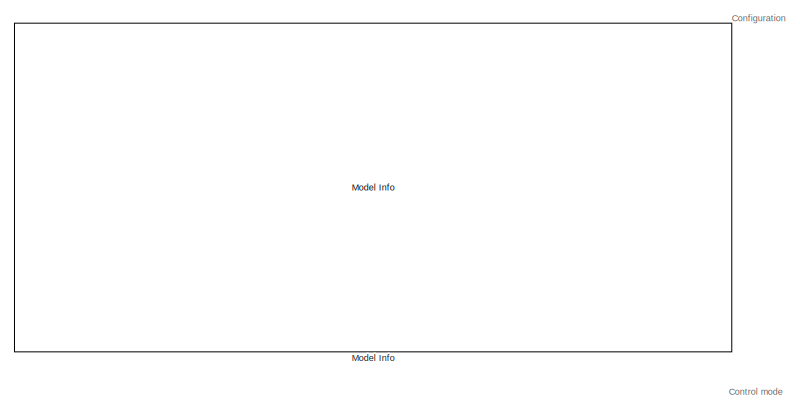
[diagram: root canvas - part 1/3, top left region]
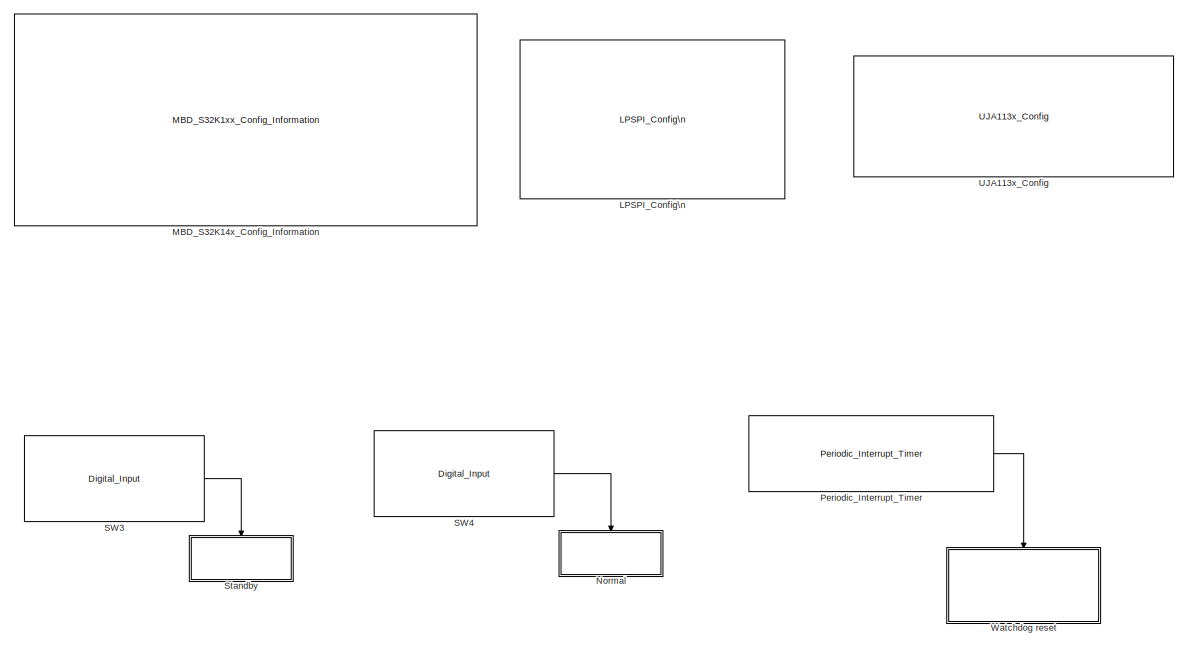
[diagram: root canvas - part 2/3, middle right region]
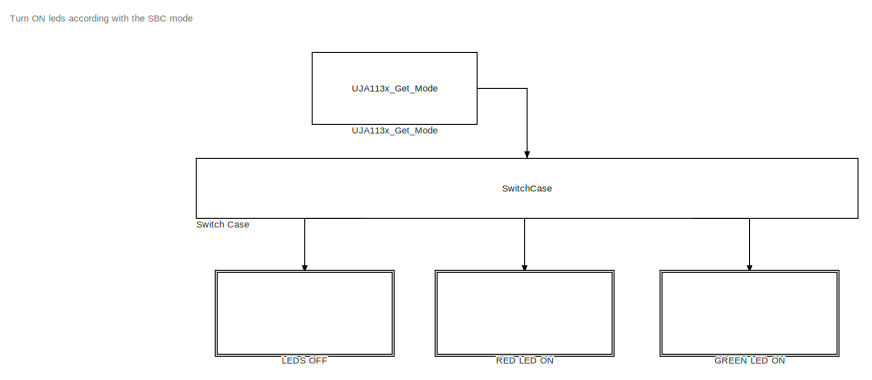
[diagram: root canvas - part 3/3, bottom center region]
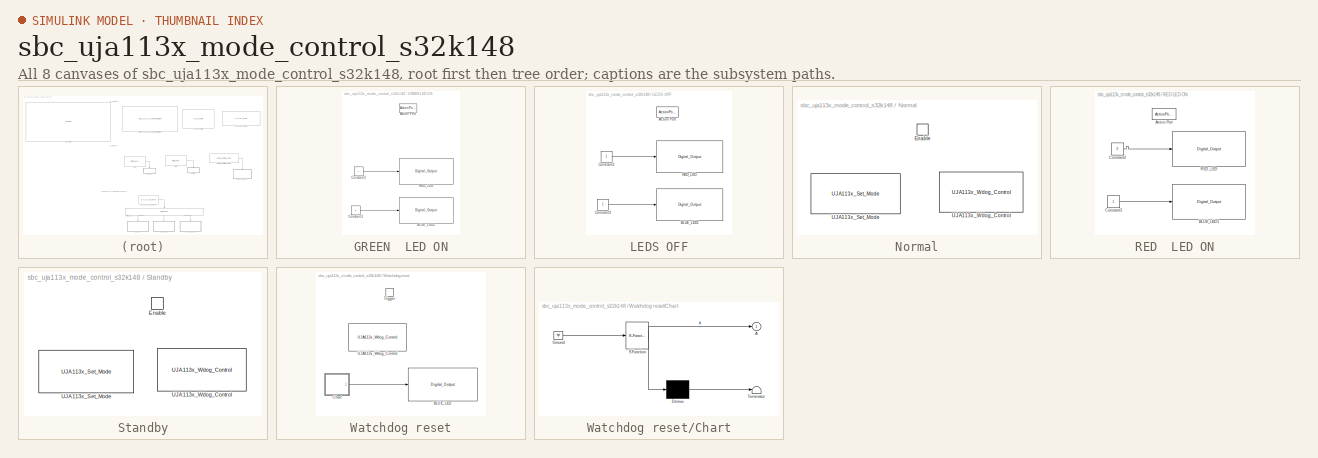
[diagram: thumbnail index - all 8 canvases of the model, root first then tree order]
MODEL sbc_uja113x_mode_control_s32k148
KIND model
CONFIG InitFcn = mbd_s32k_consistency_checks(bdroot(gcs));
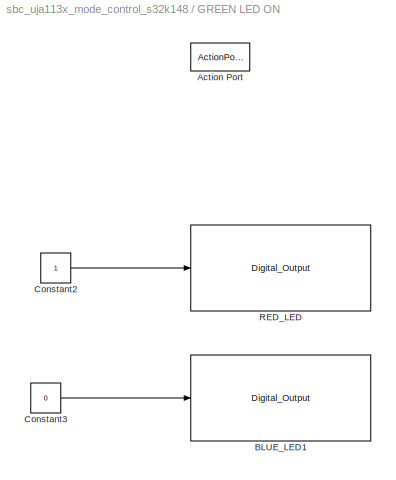
BLOCK [SubSystem] GREEN  LED ON
  Ports = [0, 0, 0, 0, 0, 0, 0, 1]
  RequestExecContextInheritance = off
  SID = 203
  TreatAsAtomicUnit = on
  Variant = off
BLOCK [ActionPort] GREEN  LED ON/Action Port
  ActionType = case
  SID = 204
BLOCK [Reference] GREEN  LED ON/BLUE_LED1  REF=mbd_s32k1xx_ec_toolbox/GPIO Blocks/Digital_Output
  Ports = [1]
  Priority = 2
  SID = 377
  SourceBlock = mbd_s32k1xx_ec_toolbox/GPIO Blocks/Digital_Output
  SourceType = gpio_s32k_output
  drive_strength = Low
  gpio_pin = PTE22: [PTE22 | Port E I/O]
  init_val = Low
BLOCK [Constant] GREEN  LED ON/Constant2
  OutDataTypeStr = boolean
  SID = 378
BLOCK [Constant] GREEN  LED ON/Constant3
  OutDataTypeStr = boolean
  SID = 379
  Value = 0
BLOCK [Reference] GREEN  LED ON/RED_LED  REF=mbd_s32k1xx_ec_toolbox/GPIO Blocks/Digital_Output
  Ports = [1]
  Priority = 2
  SID = 380
  SourceBlock = mbd_s32k1xx_ec_toolbox/GPIO Blocks/Digital_Output
  SourceType = gpio_s32k_output
  drive_strength = Low
  gpio_pin = PTE21: [PTE21 | Port E I/O]
  init_val = Low
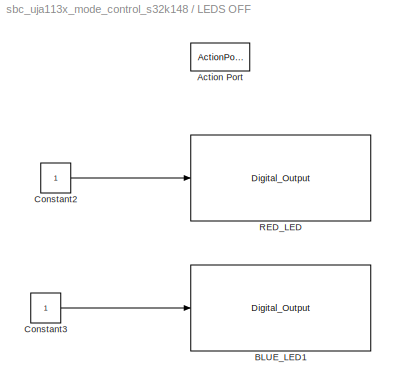
BLOCK [SubSystem] LEDS OFF
  Ports = [0, 0, 0, 0, 0, 0, 0, 1]
  RequestExecContextInheritance = off
  SID = 259
  TreatAsAtomicUnit = on
  Variant = off
BLOCK [ActionPort] LEDS OFF/Action Port
  ActionType = case
  SID = 260
BLOCK [Reference] LEDS OFF/BLUE_LED1  REF=mbd_s32k1xx_ec_toolbox/GPIO Blocks/Digital_Output
  Ports = [1]
  Priority = 2
  SID = 372
  SourceBlock = mbd_s32k1xx_ec_toolbox/GPIO Blocks/Digital_Output
  SourceType = gpio_s32k_output
  drive_strength = Low
  gpio_pin = PTE22: [PTE22 | Port E I/O]
  init_val = Low
BLOCK [Constant] LEDS OFF/Constant2
  OutDataTypeStr = boolean
  SID = 279
BLOCK [Constant] LEDS OFF/Constant3
  OutDataTypeStr = boolean
  SID = 280
BLOCK [Reference] LEDS OFF/RED_LED  REF=mbd_s32k1xx_ec_toolbox/GPIO Blocks/Digital_Output
  Ports = [1]
  Priority = 2
  SID = 371
  SourceBlock = mbd_s32k1xx_ec_toolbox/GPIO Blocks/Digital_Output
  SourceType = gpio_s32k_output
  drive_strength = Low
  gpio_pin = PTE21: [PTE21 | Port E I/O]
  init_val = Low
BLOCK [Reference] LPSPI_Config\n  REF=mbd_s32k1xx_ec_toolbox/Communication Blocks/SPI Blocks/LPSPI_Config\n
  BaudRate = 4000000
  BitOrder = MSB first
  CPHA = 1
  CPOL = 0
  ContinuousTransfer = on
  InstanceNumber = 1
  PCSPol = ActiveLow
  Ports = []
  Priority = 1
  Role = Master
  SID = 4
  ShowAdvanced = on
  SourceBlock = mbd_s32k1xx_ec_toolbox/Communication Blocks/SPI Blocks/LPSPI_Config\n
  SourceType = lpspi_s32k_config
  TransferSize = 8
  WhichPCS = 0
  pcs0 = PTA26: [LPSPI1_PCS0 | Peripheral Chip Select 0]
  pcs1 = None
  pcs2 = None
  pcs3 = None
  sck = PTA28: [LPSPI1_SCK | LPSPI Serial Clock I/O]
  sin = PTA29: [LPSPI1_SIN | LPSPI Serial Data Input]
  sout = PTA27: [LPSPI1_SOUT | LPSPI Serial Data Output]
BLOCK [Reference] MBD_S32K14x_Config_Information  REF=mbd_s32k1xx_ec_toolbox/MBD_S32K1xx_Config_Information
  ADC_PcrCheckEnDis = off
  AMMCLIB_PcrCheckEnDis = off
  CMP_PcrCheckEnDis = off
  CSEc_PcrCheckEnDis = off
  ConfigParams_PcrCheckEnDis = on
  FM_PcrCheckEnDis = off
  FTM_Dual_Edge_Inputs_PcrCheckEnDis = off
  FTM_Hall_Sensor_Inputs_PcrCheckEnDis = on
  FTM_Input_Edge_Inputs_PcrCheckEnDis = off
  FTM_PWM_PcrCheckEnDis = on
  FTM_Quadrature_Inputs_PcrCheckEnDis = off
  FlexCAN_PcrCheckEnDis = off
  FlexIO_PcrCheckEnDis = off
  GPIO_InputPcrCheckEnDis = on
  GPIO_OutputPcrCheckEnDis = on
  LIN_PcrCheckEnDis = on
  LPI2C_PcrCheckEnDis = off
  LPSPI_PcrCheckEnDis = on
  LPTMR_PcrCheckEnDis = off
  LPUART_PcrCheckEnDis = off
  ModelRef_PcrCheckEnDis = on
  PDB0_PcrCheckEnDis = off
  PIT_PcrCheckEnDis = off
  Ports = []
  Profile_PcrCheckEnDis = off
  RTC_PcrCheckEnDis = off
  SBC_PcrCheckEnDis = on
  SID = 1
  SourceBlock = mbd_s32k1xx_ec_toolbox/MBD_S32K1xx_Config_Information
  SourceType = MBDTBX_EC_S32K
  WDOG_PcrCheckEnDis = on
  config_params = []
  disp_str = Target : S32K144-64KB_SRAM\nPackage : 100-pin\nSystem clock : 80 MHz\nXTAL clock : External 8 MHz\nCompiler : IAR\nTarget Type : FLASH\nDownload Code after build : off\nStep Tick Interrupt Priority : 15
  ds_import_enable = on
  eDMA_PcrCheckEnDis = off
  gcc_target_assemble_opts = -mcpu=cortex-m4 -mthumb -mfloat-abi=hard -mfpu=fpv4-sp-d16 -g
  gcc_target_compile_opts = -mcpu=cortex-m4 -mthumb -mfloat-abi=hard -mfpu=fpv4-sp-d16 -O1 -g -gstrict-dwarf
  gcc_target_default_lcf = on
  gcc_target_link_opts = -mcpu=cortex-m4 -mthumb -mfloat-abi=hard -mfpu=fpv4-sp-d16
  gcc_target_user_lcf = S32K148_192_flash.ld
  ghs_target_assemble_opts = -cpu=cortexm4f -fpu=vfpv4_d16
  ghs_target_compile_opts = -cpu=cortexm4f -thumb -DARM_MATH_CM4 -fpu=vfpv4_d16 -fsingle -Ogeneral -Wundef -Wimplicit-int -Wshadow -Wtrigraphs --no_commons --gnu_asm -gnu99 -gdwarf-2 -G
  ghs_target_default_lcf = off
  ghs_target_link_opts = -cpu=cortexm4f -thumb -fpu=vfpv4_d16
  ghs_target_user_lcf = S32K148_192_flash.ld
  iar_target_assemble_opts = --cpu Cortex-M4F --thumb --fpu VFPv4_sp
  iar_target_compile_opts = --cpu=Cortex-M4F --thumb --fpu=VFPv4_sp -Ol -e --debug --dlib_config normal
  iar_target_default_lcf = off
  iar_target_link_opts = --no_exceptions --vfe --inline
  iar_target_user_lcf = S32K148_192_flash.icf
  mbdt_ver = 0
  mcu_steptick_prio = 15
  mcu_steptick_timer = LPIT Channel 0
  mcu_system_clock_freq = 80
  mcu_target_name = S32K148
  mcu_target_package = 144-LQFP
  mcu_target_sram_size = 192KB
  mcu_xtal_freq = External 8
  pil_download_enable = off
  pil_download_rate = 57600
  pil_opensda_drive = Custom
  pil_opensda_drive_custom = D
  pil_uart_instance = 0
  pil_uart_rx = PTA2: [LPUART0_RX | Receive]
  pil_uart_tx = PTA3: [LPUART0_TX | Transmit]
  rbl_com_port = Custom
  rbl_com_port_custom = COM1
  rbl_download_enable = on
  rbl_download_interface = OpenSDA
  rbl_restart_request = off
  rbl_start_delay = 5000000
  target_compiler = GCC
  target_memory = FLASH
BLOCK [Reference] Model Info  REF=simulink/Model-Wide\nUtilities/Model Info
  DisplayStringWithTags = Model Name: %<ModelName>\n\nDescription: %<Description>
  Frame = on
  HorizontalTextAlignment = Left
  LeftAlignmentValue = 0.02
  MaskDisplayString = Model Name: sbc_uja113x_mode_control_s32k148\\n\\nDescription: This model demonstrates how to handle operating modes of SBC.\\n\\nValidation:\\n- A BLUE led is toggled at each time Watchdog resets\\n- Press SW3 to send SBC in Standby mode (RED led should be on)\\n- Press SW4 to send SBC in Normal mode (GREEN led should be on)\\n\\nNote:\\nThis application flashes the non-volatile memory MTPNV and ...<+511ch>
  Ports = []
  SID = 384
  SourceBlock = simulink/Model-Wide\nUtilities/Model Info
  SourceProductBaseCode = SL
  SourceProductName = Simulink
  SourceType = CMBlock
BLOCK [SubSystem] Normal
  Ports = [0, 0, 1]
  RequestExecContextInheritance = off
  SID = 24
  TreatAsAtomicUnit = on
  Variant = off
BLOCK [EnablePort] Normal/Enable
  Ports = []
  SID = 25
BLOCK [Reference] Normal/UJA113x_Set_Mode  REF=mbd_sbc_ec_toolbox/UJA113x/UJA113x_Set_Mode
  Ports = []
  SID = 27
  SourceBlock = mbd_sbc_ec_toolbox/UJA113x/UJA113x_Set_Mode
  SourceType = sbc_uja113x_s32k_set_mode
  modeCtrl = Normal
  status = off
BLOCK [Reference] Normal/UJA113x_Wdog_Control  REF=mbd_sbc_ec_toolbox/UJA113x/UJA113x_Wdog_Control
  ModeCtrl = Window
  NominalPer = 128 ms
  Ports = []
  SID = 28
  SourceBlock = mbd_sbc_ec_toolbox/UJA113x/UJA113x_Wdog_Control
  SourceType = sbc_uja113x_s32k_wdog_control
  mode = on
  period = off
  reset = off
BLOCK [Reference] Periodic_Interrupt_Timer  REF=mbd_s32k1xx_ec_toolbox/Utility Blocks/Periodic_Interrupt_Timer
  Ports = [0, 1]
  SID = 14
  SourceBlock = mbd_s32k1xx_ec_toolbox/Utility Blocks/Periodic_Interrupt_Timer
  SourceType = timer_s32k_lpit
  channel = 1
  period = 3000000
  prio = 15
  startCounter = on
BLOCK [SubSystem] RED  LED ON
  Ports = [0, 0, 0, 0, 0, 0, 0, 1]
  RequestExecContextInheritance = off
  SID = 315
  TreatAsAtomicUnit = on
  Variant = off
BLOCK [ActionPort] RED  LED ON/Action Port
  ActionType = case
  SID = 316
BLOCK [Reference] RED  LED ON/BLUE_LED1  REF=mbd_s32k1xx_ec_toolbox/GPIO Blocks/Digital_Output
  Ports = [1]
  Priority = 2
  SID = 373
  SourceBlock = mbd_s32k1xx_ec_toolbox/GPIO Blocks/Digital_Output
  SourceType = gpio_s32k_output
  drive_strength = Low
  gpio_pin = PTE22: [PTE22 | Port E I/O]
  init_val = Low
BLOCK [Constant] RED  LED ON/Constant2
  OutDataTypeStr = boolean
  SID = 374
  Value = 0
BLOCK [Constant] RED  LED ON/Constant3
  OutDataTypeStr = boolean
  SID = 375
BLOCK [Reference] RED  LED ON/RED_LED  REF=mbd_s32k1xx_ec_toolbox/GPIO Blocks/Digital_Output
  Ports = [1]
  Priority = 2
  SID = 376
  SourceBlock = mbd_s32k1xx_ec_toolbox/GPIO Blocks/Digital_Output
  SourceType = gpio_s32k_output
  drive_strength = Low
  gpio_pin = PTE21: [PTE21 | Port E I/O]
  init_val = Low
BLOCK [Reference] SW3  REF=mbd_s32k1xx_ec_toolbox/GPIO Blocks/Digital_Input
  Ports = [0, 1]
  SID = 22
  SourceBlock = mbd_s32k1xx_ec_toolbox/GPIO Blocks/Digital_Input
  SourceType = gpio_s32k_input
  gpio_pin = PTC12: [PTC12 | Port C I/O]
  passive_filter = off
  pull_resistor = Pulldown
BLOCK [Reference] SW4  REF=mbd_s32k1xx_ec_toolbox/GPIO Blocks/Digital_Input
  Ports = [0, 1]
  SID = 23
  SourceBlock = mbd_s32k1xx_ec_toolbox/GPIO Blocks/Digital_Input
  SourceType = gpio_s32k_input
  gpio_pin = PTC13: [PTC13 | Port C I/O]
  passive_filter = off
  pull_resistor = Pulldown
BLOCK [SubSystem] Standby
  Ports = [0, 0, 1]
  RequestExecContextInheritance = off
  SID = 16
  TreatAsAtomicUnit = on
  Variant = off
BLOCK [EnablePort] Standby/Enable
  Ports = []
  SID = 17
BLOCK [Reference] Standby/UJA113x_Set_Mode  REF=mbd_sbc_ec_toolbox/UJA113x/UJA113x_Set_Mode
  Ports = []
  Priority = 2
  SID = 20
  SourceBlock = mbd_sbc_ec_toolbox/UJA113x/UJA113x_Set_Mode
  SourceType = sbc_uja113x_s32k_set_mode
  modeCtrl = Standby
  status = off
BLOCK [Reference] Standby/UJA113x_Wdog_Control  REF=mbd_sbc_ec_toolbox/UJA113x/UJA113x_Wdog_Control
  Commented = on
  ModeCtrl = Autonomous
  NominalPer = 128 ms
  Ports = []
  Priority = 1
  SID = 21
  SourceBlock = mbd_sbc_ec_toolbox/UJA113x/UJA113x_Wdog_Control
  SourceType = sbc_uja113x_s32k_wdog_control
  mode = on
  period = off
  reset = off
BLOCK [SwitchCase] Switch Case
  CaseConditions = {1,4,7}
  Ports = [1, 3]
  SID = 33
  ShowDefaultCase = off
BLOCK [Reference] UJA113x_Config  REF=mbd_sbc_ec_toolbox/UJA113x/UJA113x_Config
  CANfailure = on
  CANmodeCtrl = Offline
  CANsilence = on
  CANwkUp = on
  DataLength = 0
  FDPartial = off
  FDcontrol = off
  ID1 = 0
  ID2 = 0
  ID3 = 0
  ID4 = 0
  IDmask1 = 0
  IDmask2 = 0
  IDmask3 = 0
  IDmask4 = 0
  IdFormat = 11-bit
  Instance = 0
  LHCtrl = Floating
  Lin1WkUp = on
  Lin2WkUp = on
  Lock0 = off
  Lock1 = off
  Lock2 = off
  Lock3 = off
  Lock4 = off
  Lock5 = off
  Lock6 = off
  NominalPer = 4096 ms
  PartialNetwData = Don't care
  Pins = None
  Ports = []
  ResetTresh = 90
  SID = 5
  SourceBlock = mbd_sbc_ec_toolbox/UJA113x/UJA113x_Config
  SourceType = sbc_uja113x_s32k_config
  V1underv = on
  V2SC = None
  V2overv = on
  V2underv = on
  VextConfig = OFF
  WdogModeCtrl = Window
  dataMask0 = 0
  dataMask1 = 0
  dataMask2 = 0
  dataMask3 = 0
  dataMask4 = 0
  dataMask5 = 0
  dataMask6 = 0
  dataMask7 = 0
  dataRate = 50 kbit/s
  deviceModel = UJA1132HWFD5V0
  fallingEdge = off
  modeCtrl = NORMAL
  overtempWrng = on
  risingEdge = off
  spiFailure = on
BLOCK [Reference] UJA113x_Get_Mode  REF=mbd_sbc_ec_toolbox/UJA113x/UJA113x_Get_Mode
  Ports = [0, 1]
  SID = 34
  SourceBlock = mbd_sbc_ec_toolbox/UJA113x/UJA113x_Get_Mode
  SourceType = sbc_uja113x_s32k_get_mode
BLOCK [SubSystem] Watchdog reset
  Ports = [0, 0, 0, 1]
  RequestExecContextInheritance = off
  SID = 8
  Variant = off
BLOCK [Reference] Watchdog reset/BLUE_LED  REF=mbd_s32k1xx_ec_toolbox/GPIO Blocks/Digital_Output
  Ports = [1]
  Priority = 2
  SID = 10
  SourceBlock = mbd_s32k1xx_ec_toolbox/GPIO Blocks/Digital_Output
  SourceType = gpio_s32k_output
  drive_strength = Low
  gpio_pin = PTE23: [PTE23 | Port E I/O]
  init_val = Low
BLOCK [SubSystem] Watchdog reset/Chart
  ErrorFcn = Stateflow.Translate.translate
  PermitHierarchicalResolution = ExplicitOnly
  Ports = [0, 1]
  RequestExecContextInheritance = off
  SFBlockType = Chart
  SID = 11
  TreatAsAtomicUnit = on
  Variant = off
BLOCK [Outport] Watchdog reset/Chart/ A
  IconDisplay = Port number
  SID = 11::6
BLOCK [Demux] Watchdog reset/Chart/ Demux 
  Outputs = 1
  Ports = [1, 1]
  SID = 11::32
BLOCK [Ground] Watchdog reset/Chart/ Ground 
  SID = 11::34
BLOCK [S-Function] Watchdog reset/Chart/ SFunction 
  EnableBusSupport = on
  FunctionName = sf_sfun
  PortCounts = [1 2]
  Ports = [1, 2]
  SFcnIsStateOwnerBlock = off
  SFunctionDeploymentMode = off
  SID = 11::31
  Tag = Stateflow S-Function sbc_uja113x_mode_control_s32k148 3
BLOCK [Terminator] Watchdog reset/Chart/ Terminator 
  SID = 11::33
BLOCK [TriggerPort] Watchdog reset/Trigger
  PortDimensions = 1
  Ports = []
  SID = 15
  StatesWhenEnabling = held
  TriggerType = function-call
  VariantControl = Variant
BLOCK [Reference] Watchdog reset/UJA113x_Wdog_Control  REF=mbd_sbc_ec_toolbox/UJA113x/UJA113x_Wdog_Control
  ModeCtrl = Autonomous
  NominalPer = 128 ms
  Ports = []
  Priority = 1
  SID = 12
  SourceBlock = mbd_sbc_ec_toolbox/UJA113x/UJA113x_Wdog_Control
  SourceType = sbc_uja113x_s32k_wdog_control
  mode = off
  period = off
  reset = on
ANNOTATION (root): Configuration
ANNOTATION (root): Control mode
ANNOTATION (root): Turn ON leds according with the SBC mode
LINE GREEN  LED ON/Constant2:1 -> GREEN  LED ON/RED_LED:1
LINE GREEN  LED ON/Constant3:1 -> GREEN  LED ON/BLUE_LED1:1
LINE LEDS OFF/Constant2:1 -> LEDS OFF/RED_LED:1
LINE LEDS OFF/Constant3:1 -> LEDS OFF/BLUE_LED1:1
LINE Periodic_Interrupt_Timer:1 -> Watchdog reset:trigger
LINE RED  LED ON/Constant2:1 -> RED  LED ON/RED_LED:1
LINE RED  LED ON/Constant3:1 -> RED  LED ON/BLUE_LED1:1
LINE SW3:1 -> Standby:enable
LINE SW4:1 -> Normal:enable
LINE Switch Case:1 -> LEDS OFF:ifaction
LINE Switch Case:2 -> RED  LED ON:ifaction
LINE Switch Case:3 -> GREEN  LED ON:ifaction
LINE UJA113x_Get_Mode:1 -> Switch Case:1
LINE Watchdog reset/Chart/ Demux :1 -> Watchdog reset/Chart/ Terminator :1
LINE Watchdog reset/Chart/ Ground :1 -> Watchdog reset/Chart/ SFunction :1
LINE Watchdog reset/Chart/ SFunction :1 -> Watchdog reset/Chart/ Demux :1
LINE Watchdog reset/Chart/ SFunction :2 -> Watchdog reset/Chart/ A:1
LINE Watchdog reset/Chart:1 -> Watchdog reset/BLUE_LED:1
CHART Watchdog reset/Chart states=2 transitions=3
  STATE_LABEL 'A'
  STATE_LABEL 'A1'
